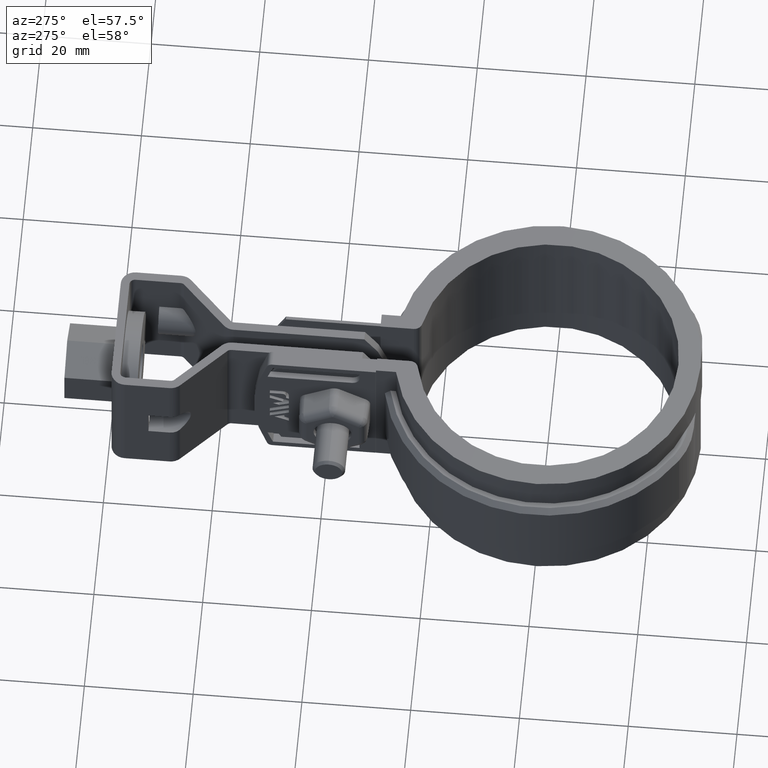
[diagram: clean part render]
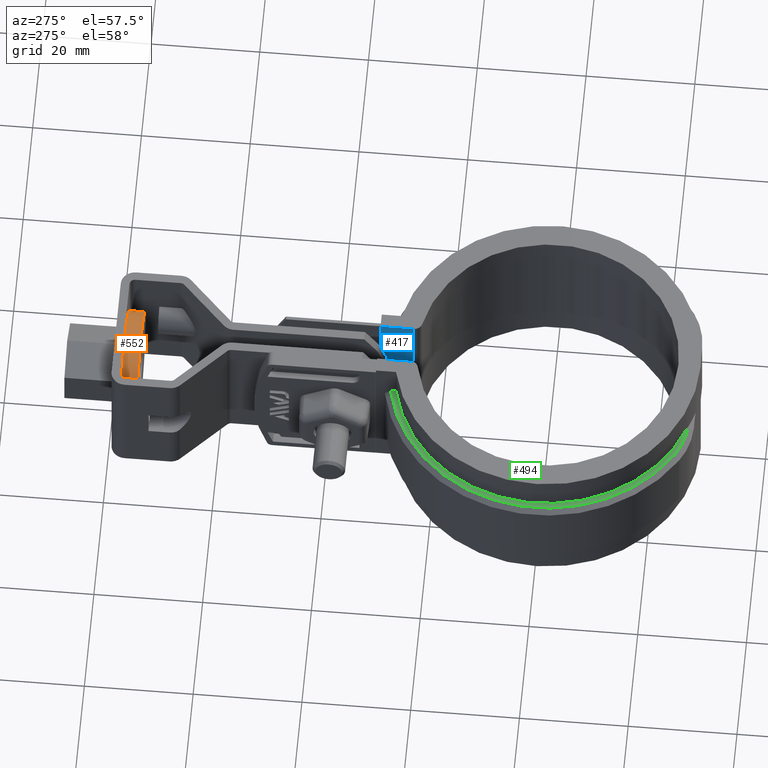
[diagram: same view with three faces highlighted in distinct colors, each labeled with its STEP entity id]
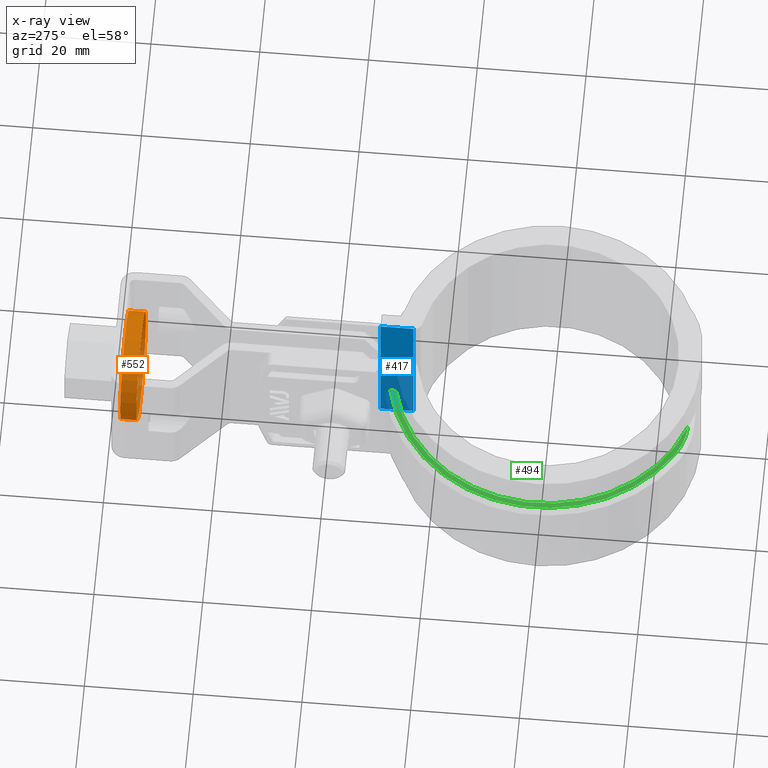
[diagram: x-ray of the same camera — body ghosted, the three highlighted faces saturated]
A machine part, auxiliary view with three faces highlighted in distinct colors.
The next image is the same camera in x-ray (body ghosted, the three faces saturated) — at least one of them is partly hidden behind the body in this view.
Their STEP definitions:

[orange] entity #552 — the highlighted cylindrical surface (bore or boss wall) has radius 10 mm, axis along (0, -1, 0).
#552 = ADVANCED_FACE( '', ( #1110, #1111 ), #1112, .T. );
#1110 = FACE_OUTER_BOUND( '', #2454, .T. );
#1111 = FACE_OUTER_BOUND( '', #2455, .T. );
#1112 = CYLINDRICAL_SURFACE( '', #2456, 10.0000000000000 );
#2454 = EDGE_LOOP( '', ( #5610 ) );
#2455 = EDGE_LOOP( '', ( #5611 ) );
#2456 = AXIS2_PLACEMENT_3D( '', #5612, #5613, #5614 );
#5610 = ORIENTED_EDGE( '', *, *, #7467, .T. );
#5611 = ORIENTED_EDGE( '', *, *, #7456, .F. );
#5612 = CARTESIAN_POINT( '', ( -6.62111748797458E-010, 74.7998007485224, -12.5000000691590 ) );
#5613 = DIRECTION( '', ( 3.46787463341350E-012, -1.00000000000000, 5.08856068393042E-010 ) );
#5614 = DIRECTION( '', ( 1.00000000000000, 3.46787463237660E-012, -2.03772028769699E-012 ) );
#7456 = EDGE_CURVE( '', #8790, #8790, #8791, .T. );
#7467 = EDGE_CURVE( '', #8809, #8809, #8810, .T. );
#8790 = VERTEX_POINT( '', #12444 );
#8791 = CIRCLE( '', #12445, 10.0000000000000 );
#8809 = VERTEX_POINT( '', #12472 );
#8810 = CIRCLE( '', #12473, 10.0000000000000 );
#12444 = CARTESIAN_POINT( '', ( 9.99999999932748, 77.7998007485571, -12.5000000707059 ) );
#12445 = AXIS2_PLACEMENT_3D( '', #14235, #14236, #14237 );
#12472 = CARTESIAN_POINT( '', ( 9.99999999933789, 74.7998007485571, -12.5000000691794 ) );
#12473 = AXIS2_PLACEMENT_3D( '', #14250, #14251, #14252 );
#14235 = CARTESIAN_POINT( '', ( -6.72515372697699E-010, 77.7998007485224, -12.5000000706856 ) );
#14236 = DIRECTION( '', ( -3.46787463341350E-012, 1.00000000000000, -5.08856068393042E-010 ) );
#14237 = DIRECTION( '', ( 1.00000000000000, 3.46787463237660E-012, -2.03772028769699E-012 ) );
#14250 = CARTESIAN_POINT( '', ( -6.62111748797458E-010, 74.7998007485224, -12.5000000691590 ) );
#14251 = DIRECTION( '', ( -3.46787463341350E-012, 1.00000000000000, -5.08856068393042E-010 ) );
#14252 = DIRECTION( '', ( 1.00000000000000, 3.46787463237660E-012, -2.03772028769699E-012 ) );

[blue] entity #417 — the highlighted planar face has unit normal (-1, 0, 0).
#417 = ADVANCED_FACE( '', ( #826 ), #827, .T. );
#826 = FACE_OUTER_BOUND( '', #1870, .T. );
#827 = PLANE( '', #1871 );
#1870 = EDGE_LOOP( '', ( #3920, #3921, #3922, #3923 ) );
#1871 = AXIS2_PLACEMENT_3D( '', #3924, #3925, #3926 );
#3920 = ORIENTED_EDGE( '', *, *, #7074, .F. );
#3921 = ORIENTED_EDGE( '', *, *, #7075, .T. );
#3922 = ORIENTED_EDGE( '', *, *, #7076, .T. );
#3923 = ORIENTED_EDGE( '', *, *, #7077, .T. );
#3924 = CARTESIAN_POINT( '', ( 3.50000000000000, 31.1900000000000, -26.5000000000000 ) );
#3925 = DIRECTION( '', ( -1.00000000000000, 6.07153216591882E-017, 0.000000000000000 ) );
#3926 = DIRECTION( '', ( 6.07153216591882E-017, 1.00000000000000, 0.000000000000000 ) );
#7074 = EDGE_CURVE( '', #8154, #8155, #8156, .T. );
#7075 = EDGE_CURVE( '', #8154, #8157, #8158, .T. );
#7076 = EDGE_CURVE( '', #8157, #8159, #8160, .T. );
#7077 = EDGE_CURVE( '', #8159, #8155, #8161, .T. );
#8154 = VERTEX_POINT( '', #10684 );
#8155 = VERTEX_POINT( '', #10685 );
#8156 = LINE( '', #10686, #10687 );
#8157 = VERTEX_POINT( '', #10688 );
#8158 = LINE( '', #10689, #10690 );
#8159 = VERTEX_POINT( '', #10691 );
#8160 = LINE( '', #10692, #10693 );
#8161 = LINE( '', #10694, #10695 );
#10684 = CARTESIAN_POINT( '', ( 3.50000000000001, 31.0998007960208, 1.50000000000000 ) );
#10685 = CARTESIAN_POINT( '', ( 3.50000000000000, 25.0049995001000, 1.50000000000000 ) );
#10686 = CARTESIAN_POINT( '', ( 3.50000000000000, 31.1900000000000, 1.50000000000000 ) );
#10687 = VECTOR( '', #13737, 1000.00000000000 );
#10688 = CARTESIAN_POINT( '', ( 3.50000000000001, 31.0998007960208, -26.5000000000000 ) );
#10689 = CARTESIAN_POINT( '', ( 3.50000000000000, 31.0998007960208, -26.5000000000000 ) );
#10690 = VECTOR( '', #13738, 1000.00000000000 );
#10691 = CARTESIAN_POINT( '', ( 3.50000000000000, 25.0049995001000, -26.5000000000000 ) );
#10692 = CARTESIAN_POINT( '', ( 3.50000000000000, 31.1900000000000, -26.5000000000000 ) );
#10693 = VECTOR( '', #13739, 1000.00000000000 );
#10694 = CARTESIAN_POINT( '', ( 3.50000000000000, 25.0049995001000, -26.5000000000000 ) );
#10695 = VECTOR( '', #13740, 1000.00000000000 );
#13737 = DIRECTION( '', ( -6.07153216591882E-017, -1.00000000000000, 0.000000000000000 ) );
#13738 = DIRECTION( '', ( 0.000000000000000, 0.000000000000000, -1.00000000000000 ) );
#13739 = DIRECTION( '', ( -6.07153216591882E-017, -1.00000000000000, 0.000000000000000 ) );
#13740 = DIRECTION( '', ( 0.000000000000000, 0.000000000000000, 1.00000000000000 ) );

[green] entity #494 — the highlighted planar face has unit normal (0, 0, -1).
#494 = ADVANCED_FACE( '', ( #982 ), #983, .F. );
#982 = FACE_OUTER_BOUND( '', #2326, .T. );
#983 = PLANE( '', #2327 );
#2326 = EDGE_LOOP( '', ( #5116, #5117, #5118, #5119 ) );
#2327 = AXIS2_PLACEMENT_3D( '', #5120, #5121, #5122 );
#5116 = ORIENTED_EDGE( '', *, *, #7312, .T. );
#5117 = ORIENTED_EDGE( '', *, *, #7313, .T. );
#5118 = ORIENTED_EDGE( '', *, *, #7275, .T. );
#5119 = ORIENTED_EDGE( '', *, *, #7268, .T. );
#5120 = CARTESIAN_POINT( '', ( 8.67361737988404E-016, 0.000000000000000, -5.00000000000000 ) );
#5121 = DIRECTION( '', ( 0.000000000000000, 0.000000000000000, -1.00000000000000 ) );
#5122 = DIRECTION( '', ( -0.190592010331802, -0.981669336180815, 0.000000000000000 ) );
#7268 = EDGE_CURVE( '', #8483, #8481, #8484, .T. );
#7275 = EDGE_CURVE( '', #8494, #8483, #8495, .T. );
#7312 = EDGE_CURVE( '', #8481, #8550, #8551, .F. );
#7313 = EDGE_CURVE( '', #8550, #8494, #8552, .F. );
#8481 = VERTEX_POINT( '', #11962 );
#8483 = VERTEX_POINT( '', #11967 );
#8484 = LINE( '', #11968, #11969 );
#8494 = VERTEX_POINT( '', #11984 );
#8495 = CIRCLE( '', #11985, 28.0950000000000 );
#8550 = VERTEX_POINT( '', #12066 );
#8551 = CIRCLE( '', #12067, 29.0950000000000 );
#8552 = CIRCLE( '', #12068, 12.6000000000000 );
#11962 = CARTESIAN_POINT( '', ( -6.09999999999999, 28.4483571581910, -5.00000000000000 ) );
#11967 = CARTESIAN_POINT( '', ( -6.10000000000000, 27.4247885133140, -5.00000000000000 ) );
#11968 = CARTESIAN_POINT( '', ( -6.09999999999999, 27.4247885133140, -5.00000000000000 ) );
#11969 = VECTOR( '', #13919, 1000.00000000000 );
#11984 = CARTESIAN_POINT( '', ( -9.11639408719635, -26.5748073153303, -5.00000000000000 ) );
#11985 = AXIS2_PLACEMENT_3D( '', #13928, #13929, #13930 );
#12066 = CARTESIAN_POINT( '', ( -15.4421189501993, -24.6588723855714, -5.00000000000000 ) );
#12067 = AXIS2_PLACEMENT_3D( '', #13999, #14000, #14001 );
#12068 = AXIS2_PLACEMENT_3D( '', #14002, #14003, #14004 );
#13919 = DIRECTION( '', ( 5.55111512312578E-017, 1.00000000000000, 0.000000000000000 ) );
#13928 = CARTESIAN_POINT( '', ( 8.67361737988404E-016, 0.000000000000000, -5.00000000000000 ) );
#13929 = DIRECTION( '', ( 0.000000000000000, 0.000000000000000, -1.00000000000000 ) );
#13930 = DIRECTION( '', ( 1.00000000000000, 2.77555756156289E-017, 0.000000000000000 ) );
#13999 = CARTESIAN_POINT( '', ( 8.67361737988404E-016, 0.000000000000000, -5.00000000000000 ) );
#14000 = DIRECTION( '', ( 0.000000000000000, 0.000000000000000, -1.00000000000000 ) );
#14001 = DIRECTION( '', ( -1.00000000000000, 0.000000000000000, 0.000000000000000 ) );
#14002 = CARTESIAN_POINT( '', ( -8.75469159936545, -13.9800000000000, -5.00000000000000 ) );
#14003 = DIRECTION( '', ( 0.000000000000000, 0.000000000000000, -1.00000000000000 ) );
#14004 = DIRECTION( '', ( -1.00000000000000, 0.000000000000000, 0.000000000000000 ) );